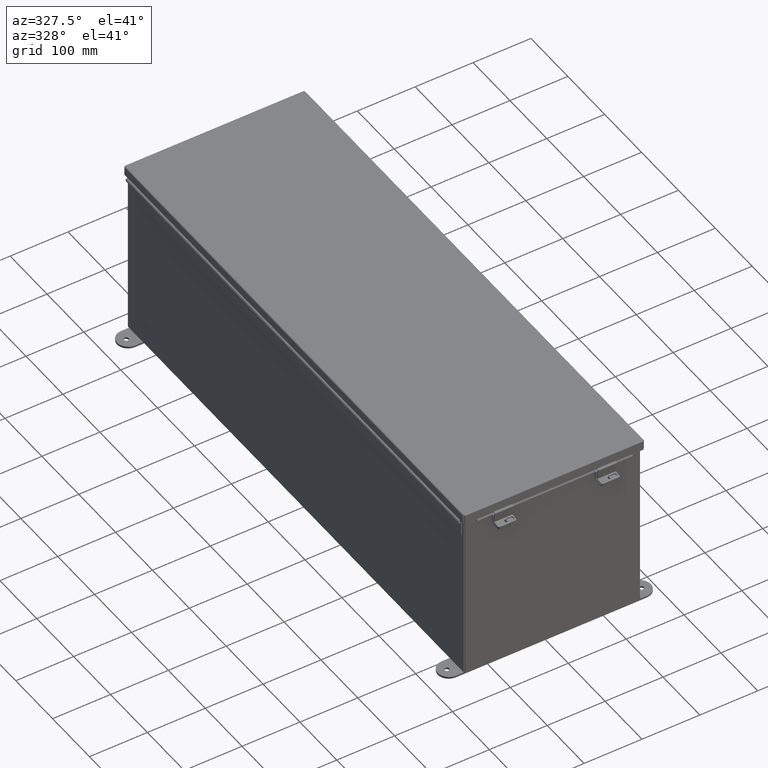
[diagram: clean part render]
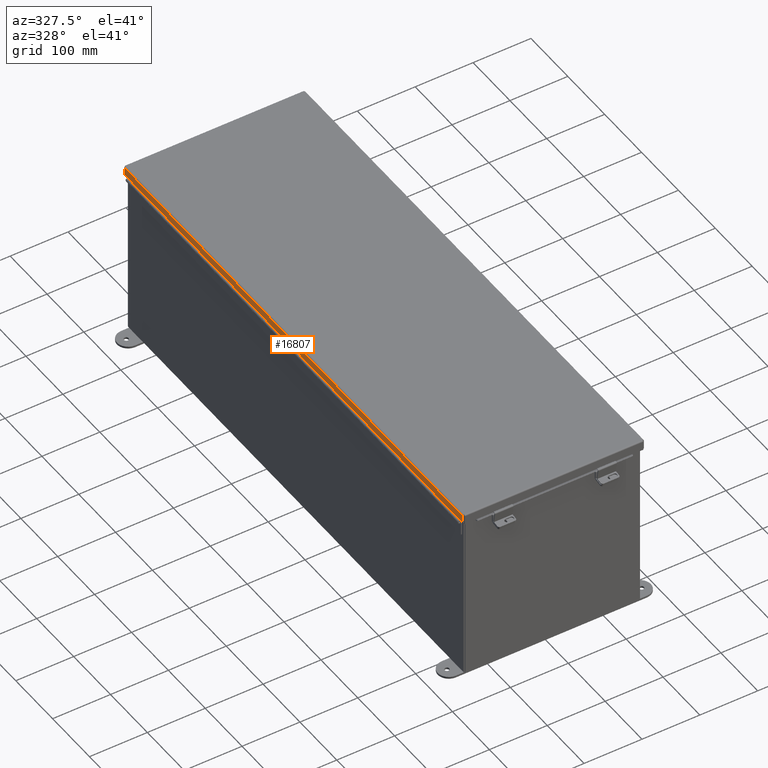
[diagram: same view with one face highlighted and labeled with its STEP entity id]
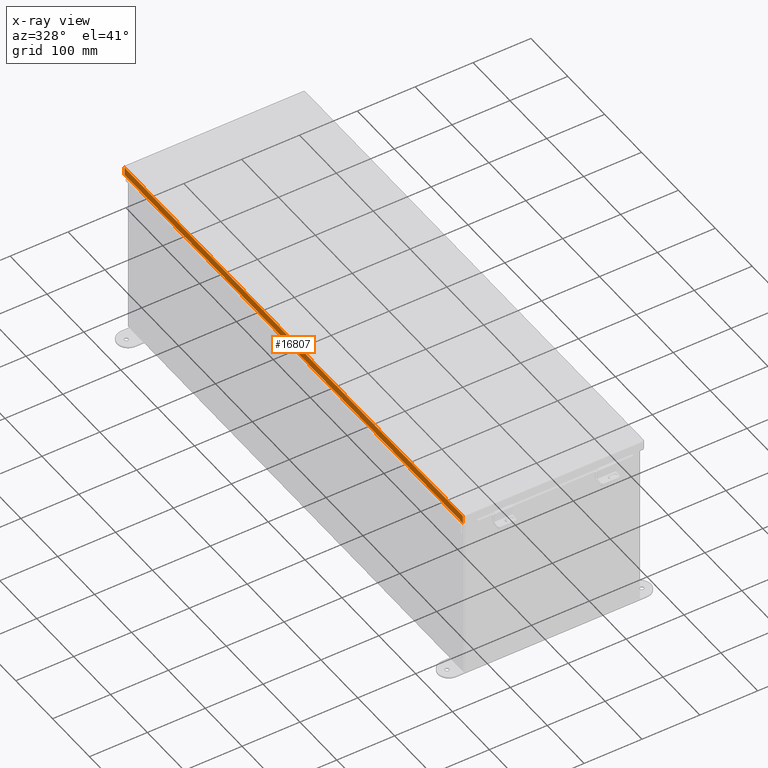
[diagram: x-ray of the same camera — body ghosted, the highlighted face saturated]
A machine part, auxiliary view. The second image highlights one B-rep face of the part: STEP entity #16807.
The next image is the same camera in x-ray: the body ghosted, the highlighted face saturated — about 0% of this face is hidden behind the body in this view.
In plain terms, the highlighted planar face has unit normal (1, -0, 0).
Its self-contained STEP definition (entity closure, byte-faithful):
#166 = EDGE_CURVE ( 'NONE', #23894, #3858, #3849, .T. ) ;
#293 = CARTESIAN_POINT ( 'NONE',  ( 6.156250000000011500, -18.07447893218813900, 0.5502999999999987900 ) ) ;
#1210 = PLANE ( 'NONE',  #3288 ) ;
#3288 = AXIS2_PLACEMENT_3D ( 'NONE', #3410, #17113, #3514 ) ;
#3410 = CARTESIAN_POINT ( 'NONE',  ( 6.156250000000008900, -4.802076551362963100E-018, -2.622574073917692700E-014 ) ) ;
#3514 = DIRECTION ( 'NONE',  ( 3.971430846686188400E-015, 1.597443333072548900E-029, 1.000000000000000000 ) ) ;
#3848 = CARTESIAN_POINT ( 'NONE',  ( 6.156250000000011500, 18.07447893218813200, 0.5502999999999987900 ) ) ;
#3849 = LINE ( 'NONE', #3871, #27363 ) ;
#3858 = VERTEX_POINT ( 'NONE', #3848 ) ;
#3871 = CARTESIAN_POINT ( 'NONE',  ( 6.156250000000008900, 18.07447893218813200, -2.622574073917692700E-014 ) ) ;
#6191 = ORIENTED_EDGE ( 'NONE', *, *, #10583, .F. ) ;
#7511 = EDGE_CURVE ( 'NONE', #3858, #15252, #10358, .T. ) ;
#9023 = CARTESIAN_POINT ( 'NONE',  ( 6.156250000000008900, 18.07447893218813200, 0.01300000000000010700 ) ) ;
#10063 = CARTESIAN_POINT ( 'NONE',  ( 6.156250000000011500, -4.802076551362963100E-018, 0.5502999999999987900 ) ) ;
#10358 = LINE ( 'NONE', #10063, #15630 ) ;
#10583 = EDGE_CURVE ( 'NONE', #24903, #15252, #25687, .T. ) ;
#11076 = DIRECTION ( 'NONE',  ( 3.971430846686188400E-015, 1.597443333072548900E-029, 1.000000000000000000 ) ) ;
#11420 = VECTOR ( 'NONE', #11076, 39.37007874015748100 ) ;
#12315 = DIRECTION ( 'NONE',  ( -5.315277860228140500E-030, -1.000000000000000000, -1.597443333072548900E-029 ) ) ;
#13249 = FACE_OUTER_BOUND ( 'NONE', #27496, .T. ) ;
#14502 = DIRECTION ( 'NONE',  ( -5.443499362759097600E-030, -1.000000000000000000, -3.009264571335726900E-017 ) ) ;
#15252 = VERTEX_POINT ( 'NONE', #293 ) ;
#15610 = ORIENTED_EDGE ( 'NONE', *, *, #27089, .F. ) ;
#15630 = VECTOR ( 'NONE', #12315, 39.37007874015748100 ) ;
#16134 = LINE ( 'NONE', #21403, #27607 ) ;
#16807 = ADVANCED_FACE ( 'NONE', ( #13249 ), #1210, .F. ) ;
#16995 = ORIENTED_EDGE ( 'NONE', *, *, #7511, .T. ) ;
#17113 = DIRECTION ( 'NONE',  ( -1.000000000000000000, -5.318666553445647300E-030, 3.971430846686188400E-015 ) ) ;
#19043 = ORIENTED_EDGE ( 'NONE', *, *, #166, .T. ) ;
#21403 = CARTESIAN_POINT ( 'NONE',  ( 6.156250000000008900, -18.15625000000000400, 0.01300000000000010700 ) ) ;
#22086 = DIRECTION ( 'NONE',  ( 3.971430846686188400E-015, 1.597443333072548900E-029, 1.000000000000000000 ) ) ;
#23894 = VERTEX_POINT ( 'NONE', #9023 ) ;
#24903 = VERTEX_POINT ( 'NONE', #28480 ) ;
#25687 = LINE ( 'NONE', #27010, #11420 ) ;
#27010 = CARTESIAN_POINT ( 'NONE',  ( 6.156250000000008900, -18.07447893218813900, 0.0000000000000000000 ) ) ;
#27089 = EDGE_CURVE ( 'NONE', #23894, #24903, #16134, .T. ) ;
#27363 = VECTOR ( 'NONE', #22086, 39.37007874015748100 ) ;
#27496 = EDGE_LOOP ( 'NONE', ( #15610, #19043, #16995, #6191 ) ) ;
#27607 = VECTOR ( 'NONE', #14502, 39.37007874015748100 ) ;
#28480 = CARTESIAN_POINT ( 'NONE',  ( 6.156250000000008900, -18.07447893218813900, 0.01300000000000010700 ) ) ;